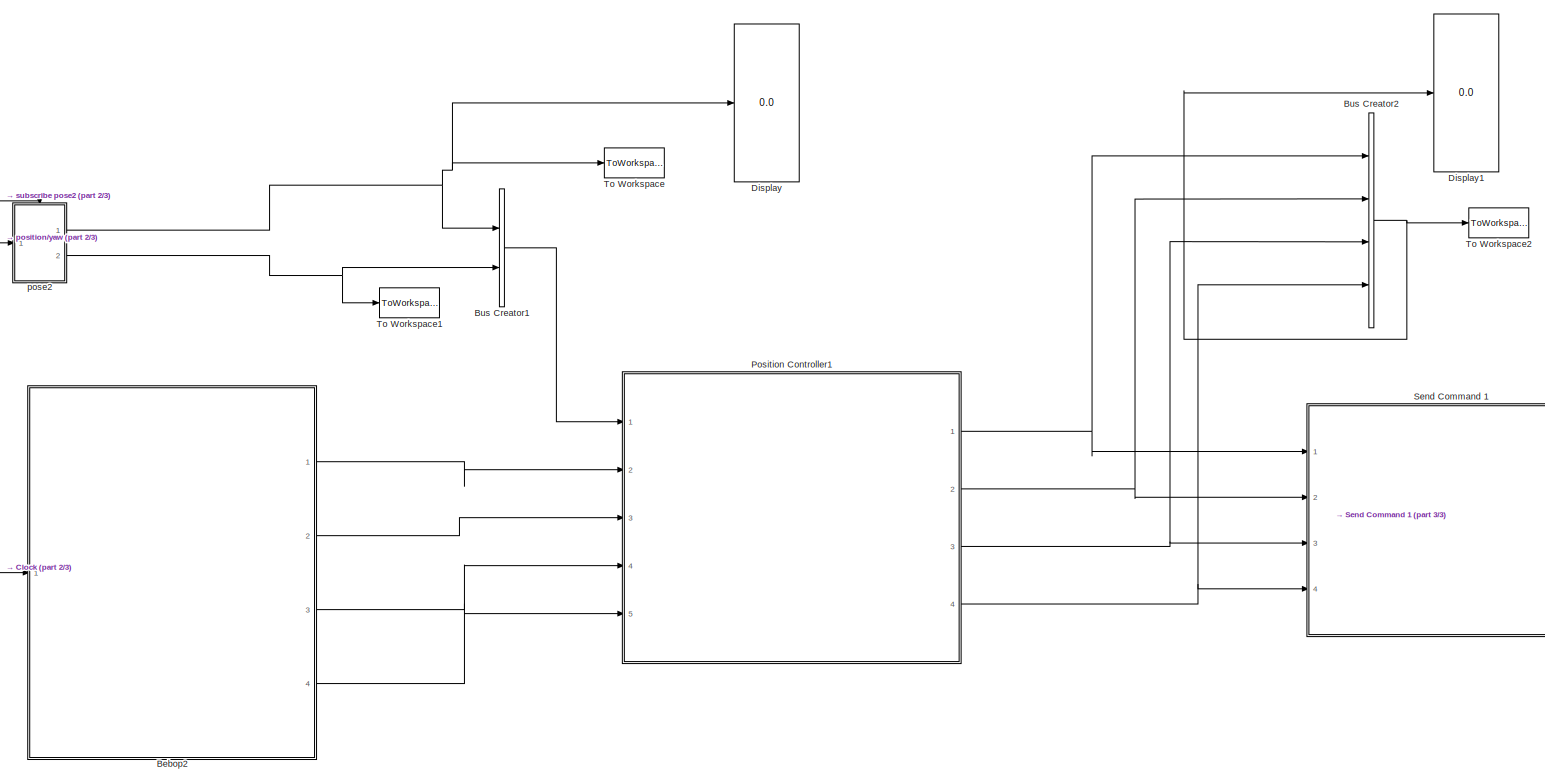
[diagram: root canvas - part 1/3, most of the canvas]
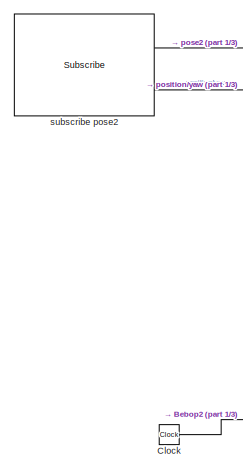
[diagram: root canvas - part 2/3, middle left region]
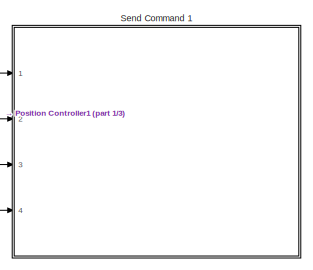
[diagram: root canvas - part 3/3, middle right region]
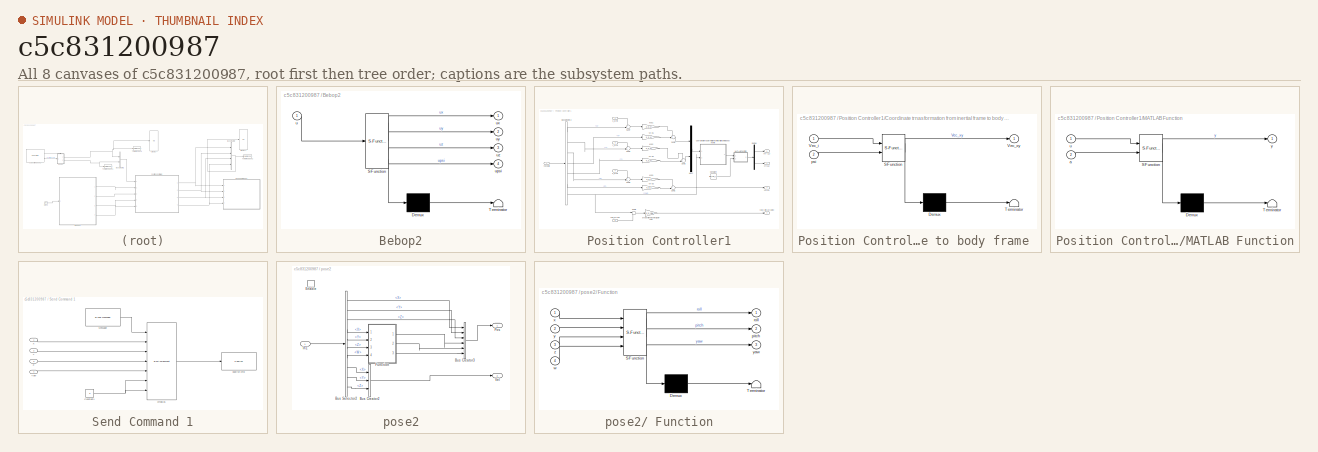
[diagram: thumbnail index - all 8 canvases of the model, root first then tree order]
MODEL slx_c5c831200987
KIND model
CONFIG AbsTol = auto
CONFIG EnableMultiTasking = on
CONFIG FixedStep = sampleTime
CONFIG MaxStep = auto
CONFIG MinStep = auto
CONFIG RelTol = 1e-3
CONFIG SampleTimeConstraint = Unconstrained
CONFIG Solver = FixedStepAuto
CONFIG SolverName = FixedStepAuto
CONFIG StartTime = 0.0
CONFIG StopTime = inf
BLOCK [SubSystem] Bebop2
  ErrorFcn = Stateflow.Translate.translate
  PermitHierarchicalResolution = ExplicitOnly
  Ports = [1, 4]
  RequestExecContextInheritance = off
  SFBlockType = MATLAB Function
  TreatAsAtomicUnit = on
  Variant = off
BLOCK [Demux] Bebop2/ Demux 
  Outputs = 1
  Ports = [1, 1]
BLOCK [S-Function] Bebop2/ SFunction 
  EnableBusSupport = on
  FunctionName = sf_sfun
  PortCounts = [1 5]
  Ports = [1, 5]
  SFcnIsStateOwnerBlock = off
  SFunctionDeploymentMode = off
  Tag = Stateflow S-Function SimCtrl 4
BLOCK [Terminator] Bebop2/ Terminator 
BLOCK [Inport] Bebop2/u
  IconDisplay = Port number
BLOCK [Outport] Bebop2/upsi
  IconDisplay = Port number
  Port = 4
BLOCK [Outport] Bebop2/ux
  IconDisplay = Port number
BLOCK [Outport] Bebop2/uy
  IconDisplay = Port number
  Port = 2
BLOCK [Outport] Bebop2/uz
  IconDisplay = Port number
  Port = 3
BLOCK [BusCreator] Bus Creator1
  DisplayOption = bar
  InheritFromInputs = on
  Inputs = 2
  Ports = [2, 1]
BLOCK [BusCreator] Bus Creator2
  DisplayOption = bar
  InheritFromInputs = on
  Inputs = 4
  Ports = [4, 1]
BLOCK [Clock] Clock
BLOCK [Display] Display
  Decimation = 1
  Ports = [1]
BLOCK [Display] Display1
  Decimation = 1
  Ports = [1]
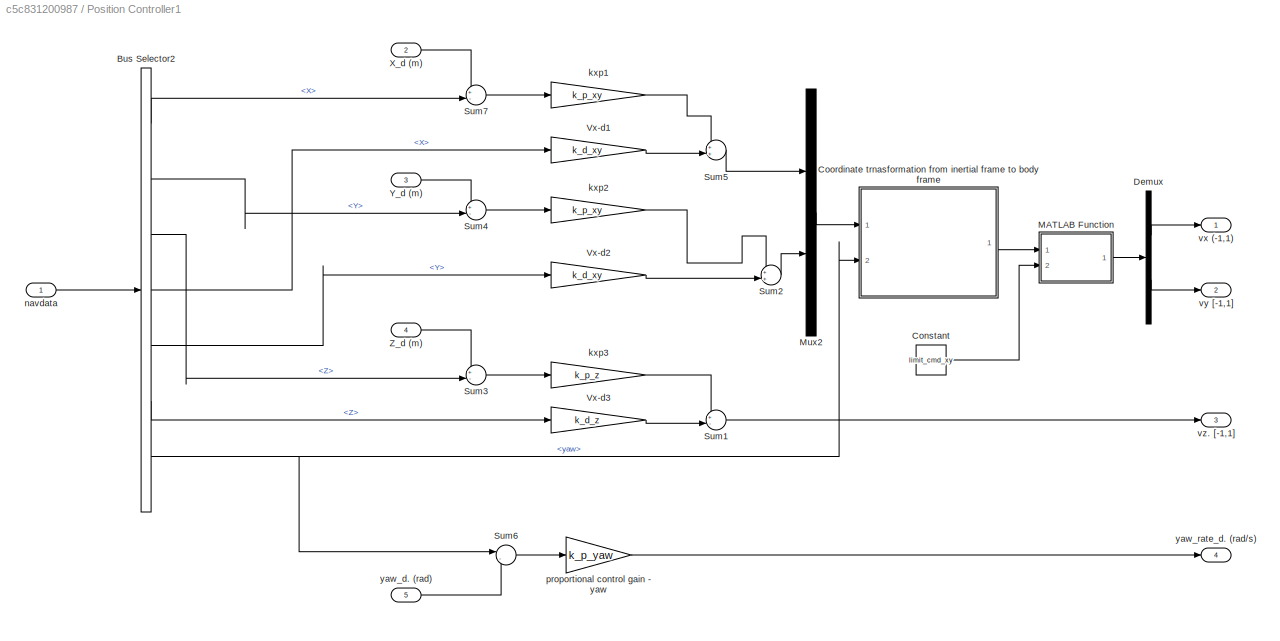
BLOCK [SubSystem] Position Controller1
  AncestorBlock = ARBlocks/Baseline Controller
  Ports = [5, 4]
  RequestExecContextInheritance = off
  Variant = off
BLOCK [BusSelector] Position Controller1/Bus Selector2
  OutputAsBus = off
  OutputSignals = signal1.X,signal1.Y,signal1.Z,signal2.X,signal2.Y,signal2.Z,signal1.yaw
  Ports = [1, 7]
BLOCK [Constant] Position Controller1/Constant
  Value = limit_cmd_xy
BLOCK [SubSystem] Position Controller1/Coordinate trnasformation from inertial frame to body frame 
  ErrorFcn = Stateflow.Translate.translate
  PermitHierarchicalResolution = ExplicitOnly
  Ports = [2, 1]
  RequestExecContextInheritance = off
  SFBlockType = MATLAB Function
  TreatAsAtomicUnit = on
  Variant = off
BLOCK [Demux] Position Controller1/Coordinate trnasformation from inertial frame to body frame / Demux 
  Outputs = 1
  Ports = [1, 1]
BLOCK [S-Function] Position Controller1/Coordinate trnasformation from inertial frame to body frame / SFunction 
  EnableBusSupport = on
  FunctionName = sf_sfun
  PortCounts = [2 2]
  Ports = [2, 2]
  SFcnIsStateOwnerBlock = off
  SFunctionDeploymentMode = off
  Tag = Stateflow S-Function SimCtrl 13
BLOCK [Terminator] Position Controller1/Coordinate trnasformation from inertial frame to body frame / Terminator 
BLOCK [Inport] Position Controller1/Coordinate trnasformation from inertial frame to body frame /Vec_i
  IconDisplay = Port number
BLOCK [Outport] Position Controller1/Coordinate trnasformation from inertial frame to body frame /Vec_xy
  IconDisplay = Port number
BLOCK [Inport] Position Controller1/Coordinate trnasformation from inertial frame to body frame /psi
  IconDisplay = Port number
  Port = 2
BLOCK [Demux] Position Controller1/Demux
  DisplayOption = bar
  Outputs = 2
  Ports = [1, 2]
BLOCK [SubSystem] Position Controller1/MATLAB Function
  ErrorFcn = Stateflow.Translate.translate
  PermitHierarchicalResolution = ExplicitOnly
  Ports = [2, 1]
  RequestExecContextInheritance = off
  SFBlockType = MATLAB Function
  TreatAsAtomicUnit = on
  Variant = off
BLOCK [Demux] Position Controller1/MATLAB Function/ Demux 
  Outputs = 1
  Ports = [1, 1]
BLOCK [S-Function] Position Controller1/MATLAB Function/ SFunction 
  EnableBusSupport = on
  FunctionName = sf_sfun
  PortCounts = [2 2]
  Ports = [2, 2]
  SFcnIsStateOwnerBlock = off
  SFunctionDeploymentMode = off
  Tag = Stateflow S-Function SimCtrl 5
BLOCK [Terminator] Position Controller1/MATLAB Function/ Terminator 
BLOCK [Inport] Position Controller1/MATLAB Function/a
  IconDisplay = Port number
  Port = 2
BLOCK [Inport] Position Controller1/MATLAB Function/u
  IconDisplay = Port number
BLOCK [Outport] Position Controller1/MATLAB Function/y
  IconDisplay = Port number
BLOCK [Mux] Position Controller1/Mux2
  DisplayOption = bar
  Inputs = 2
  Ports = [2, 1]
BLOCK [Sum] Position Controller1/Sum1
  IconShape = round
  InputSameDT = off
  Inputs = +-|
  OutDataTypeStr = Inherit: Inherit via internal rule
  Ports = [2, 1]
  SaturateOnIntegerOverflow = off
BLOCK [Sum] Position Controller1/Sum2
  IconShape = round
  InputSameDT = off
  Inputs = ++|
  OutDataTypeStr = Inherit: Inherit via internal rule
  Ports = [2, 1]
  SaturateOnIntegerOverflow = off
BLOCK [Sum] Position Controller1/Sum3
  IconShape = round
  InputSameDT = off
  Inputs = +-|
  OutDataTypeStr = Inherit: Inherit via internal rule
  Ports = [2, 1]
  SaturateOnIntegerOverflow = off
BLOCK [Sum] Position Controller1/Sum4
  IconShape = round
  InputSameDT = off
  Inputs = +-|
  OutDataTypeStr = Inherit: Inherit via internal rule
  Ports = [2, 1]
  SaturateOnIntegerOverflow = off
BLOCK [Sum] Position Controller1/Sum5
  IconShape = round
  InputSameDT = off
  Inputs = ++|
  OutDataTypeStr = Inherit: Inherit via internal rule
  Ports = [2, 1]
  SaturateOnIntegerOverflow = off
BLOCK [Sum] Position Controller1/Sum6
  IconShape = round
  InputSameDT = off
  Inputs = |-+
  OutDataTypeStr = Inherit: Inherit via internal rule
  Ports = [2, 1]
  SaturateOnIntegerOverflow = off
BLOCK [Sum] Position Controller1/Sum7
  IconShape = round
  InputSameDT = off
  Inputs = +-|
  OutDataTypeStr = Inherit: Inherit via internal rule
  Ports = [2, 1]
  SaturateOnIntegerOverflow = off
BLOCK [Gain] Position Controller1/Vx-d1
  Gain = k_d_xy
  OutDataTypeStr = Inherit: Inherit via internal rule
  ParamDataTypeStr = Inherit: Inherit via internal rule
  SaturateOnIntegerOverflow = off
BLOCK [Gain] Position Controller1/Vx-d2
  Gain = k_d_xy
  OutDataTypeStr = Inherit: Inherit via internal rule
  ParamDataTypeStr = Inherit: Inherit via internal rule
  SaturateOnIntegerOverflow = off
BLOCK [Gain] Position Controller1/Vx-d3
  Gain = k_d_z
  OutDataTypeStr = Inherit: Inherit via internal rule
  ParamDataTypeStr = Inherit: Inherit via internal rule
  SaturateOnIntegerOverflow = off
BLOCK [Inport] Position Controller1/X_d (m)
  IconDisplay = Port number
  Port = 2
BLOCK [Inport] Position Controller1/Y_d (m)
  IconDisplay = Port number
  Port = 3
BLOCK [Inport] Position Controller1/Z_d (m)
  IconDisplay = Port number
  Port = 4
BLOCK [Gain] Position Controller1/kxp1
  Gain = k_p_xy
  OutDataTypeStr = Inherit: Inherit via internal rule
  ParamDataTypeStr = Inherit: Inherit via internal rule
  SaturateOnIntegerOverflow = off
BLOCK [Gain] Position Controller1/kxp2
  Gain = k_p_xy
  OutDataTypeStr = Inherit: Inherit via internal rule
  ParamDataTypeStr = Inherit: Inherit via internal rule
  SaturateOnIntegerOverflow = off
BLOCK [Gain] Position Controller1/kxp3
  Gain = k_p_z
  OutDataTypeStr = Inherit: Inherit via internal rule
  ParamDataTypeStr = Inherit: Inherit via internal rule
  SaturateOnIntegerOverflow = off
BLOCK [Inport] Position Controller1/navdata
  IconDisplay = Port number
BLOCK [Gain] Position Controller1/proportional control gain - yaw
  Gain = k_p_yaw
  OutDataTypeStr = Inherit: Inherit via internal rule
  ParamDataTypeStr = Inherit: Inherit via internal rule
  SaturateOnIntegerOverflow = off
BLOCK [Outport] Position Controller1/vx (-1,1)
  IconDisplay = Port number
BLOCK [Outport] Position Controller1/vy [-1,1]
  IconDisplay = Port number
  Port = 2
BLOCK [Outport] Position Controller1/vz. [-1,1]
  IconDisplay = Port number
  Port = 3
BLOCK [Inport] Position Controller1/yaw_d. (rad)
  IconDisplay = Port number
  Port = 5
BLOCK [Outport] Position Controller1/yaw_rate_d. (rad//s)
  IconDisplay = Port number
  Port = 4
BLOCK [SubSystem] Send Command 1
  Ports = [4]
  RequestExecContextInheritance = off
  Variant = off
BLOCK [Reference] Send Command 1/ Message  REF=robotlib/Blank Message
  Ports = [0, 1]
  SourceBlock = robotlib/Blank Message
  SourceLibraryInfo = This block requires Robotics System Toolbox
  SourceProductBaseCode = RO
  SourceProductName = Robotics System Toolbox
  SourceType = ROS Blank Message
BLOCK [Constant] Send Command 1/Constant1
  Value = 0
BLOCK [Inport] Send Command 1/X
  IconDisplay = Port number
BLOCK [Inport] Send Command 1/Y
  IconDisplay = Port number
  Port = 2
BLOCK [Inport] Send Command 1/Yaw
  IconDisplay = Port number
  Port = 4
BLOCK [Inport] Send Command 1/Z
  IconDisplay = Port number
  Port = 3
BLOCK [BusAssignment] Send Command 1/cmdBus
  AssignedSignals = Linear.X,Linear.Y,Linear.Z,Angular.Z,Angular.X,Angular.Y
  Ports = [7, 1]
BLOCK [Reference] Send Command 1/publish cmd  REF=robotlib/Publish
  Ports = [1]
  SourceBlock = robotlib/Publish
  SourceLibraryInfo = This block requires Robotics System Toolbox
  SourceProductBaseCode = RO
  SourceProductName = Robotics System Toolbox
  SourceType = ROS Publish
BLOCK [ToWorkspace] To Workspace
  FixptAsFi = on
  MaxDataPoints = inf
  Ports = [1]
  SampleTime = -1
  Save2DSignal = 3-D array (concatenate along third dimension)
  SaveFormat = Timeseries
  VariableName = r1_pos
BLOCK [ToWorkspace] To Workspace1
  FixptAsFi = on
  MaxDataPoints = inf
  Ports = [1]
  SampleTime = -1
  Save2DSignal = 3-D array (concatenate along third dimension)
  SaveFormat = Timeseries
  VariableName = r1_vel
BLOCK [ToWorkspace] To Workspace2
  FixptAsFi = on
  MaxDataPoints = inf
  Ports = [1]
  SampleTime = -1
  Save2DSignal = 3-D array (concatenate along third dimension)
  SaveFormat = Timeseries
  VariableName = r1_cmd
BLOCK [SubSystem] pose2
  Ports = [1, 2, 1]
  RequestExecContextInheritance = off
  Variant = off
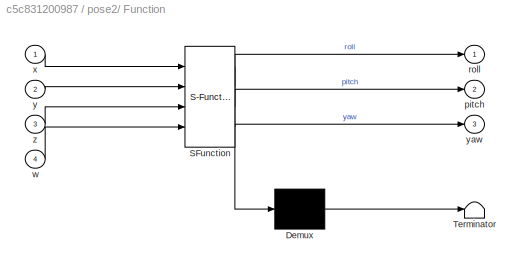
BLOCK [SubSystem] pose2/ Function
  ErrorFcn = Stateflow.Translate.translate
  PermitHierarchicalResolution = ExplicitOnly
  Ports = [4, 3]
  RequestExecContextInheritance = off
  SFBlockType = MATLAB Function
  TreatAsAtomicUnit = on
  Variant = off
BLOCK [Demux] pose2/ Function/ Demux 
  Outputs = 1
  Ports = [1, 1]
BLOCK [S-Function] pose2/ Function/ SFunction 
  EnableBusSupport = on
  FunctionName = sf_sfun
  PortCounts = [4 4]
  Ports = [4, 4]
  SFcnIsStateOwnerBlock = off
  SFunctionDeploymentMode = off
  Tag = Stateflow S-Function SimCtrl 11
BLOCK [Terminator] pose2/ Function/ Terminator 
BLOCK [Outport] pose2/ Function/pitch
  IconDisplay = Port number
  Port = 2
BLOCK [Outport] pose2/ Function/roll
  IconDisplay = Port number
BLOCK [Inport] pose2/ Function/w
  IconDisplay = Port number
  Port = 4
BLOCK [Inport] pose2/ Function/x
  IconDisplay = Port number
BLOCK [Inport] pose2/ Function/y
  IconDisplay = Port number
  Port = 2
BLOCK [Outport] pose2/ Function/yaw
  IconDisplay = Port number
  Port = 3
BLOCK [Inport] pose2/ Function/z
  IconDisplay = Port number
  Port = 3
BLOCK [BusCreator] pose2/Bus Creator2
  DisplayOption = bar
  InheritFromInputs = on
  Inputs = 3
  Ports = [3, 1]
BLOCK [BusCreator] pose2/Bus Creator3
  DisplayOption = bar
  InheritFromInputs = on
  Inputs = 6
  Ports = [6, 1]
BLOCK [BusSelector] pose2/Bus Selector2
  OutputAsBus = off
  OutputSignals = Pose.Pose.Position.X,Pose.Pose.Position.Y,Pose.Pose.Position.Z,Pose.Pose.Orientation.X,Pose.Pose.Orientation.Y,Pose.Pose.Orientation.Z,Pose.Pose.Orientation.W,Twist.Twist.Linear.X,Twist.Twist.Linear.Y,Twist.Twist.Linear.Z
  Ports = [1, 10]
BLOCK [EnablePort] pose2/Enable
  Ports = []
BLOCK [Inport] pose2/In1
  IconDisplay = Port number
BLOCK [Outport] pose2/Pos
  IconDisplay = Port number
BLOCK [Outport] pose2/Vel
  IconDisplay = Port number
  Port = 2
BLOCK [Reference] subscribe pose2  REF=robotlib/Subscribe
  Ports = [0, 2]
  SourceBlock = robotlib/Subscribe
  SourceLibraryInfo = This block requires Robotics System Toolbox
  SourceProductBaseCode = RO
  SourceProductName = Robotics System Toolbox
  SourceType = ROS Subscribe
LINE Bebop2:1 -> Position Controller1:2
LINE Bebop2:2 -> Position Controller1:3
LINE Bebop2:3 -> Position Controller1:4
LINE Bebop2:4 -> Position Controller1:5
LINE Bus Creator1:1 -> Position Controller1:1
NET Bus Creator2:1 -> Display1:1, To Workspace2:1
LINE Clock:1 -> Bebop2:1
NET Position Controller1:1 -> Bus Creator2:1, Send Command 1:1
NET Position Controller1:2 -> Bus Creator2:2, Send Command 1:2
NET Position Controller1:3 -> Bus Creator2:3, Send Command 1:3
NET Position Controller1:4 -> Bus Creator2:4, Send Command 1:4
LINE Send Command 1/ Message:1 -> Send Command 1/cmdBus:1
NET Send Command 1/Constant1:1 -> Send Command 1/cmdBus:6, Send Command 1/cmdBus:7
LINE Send Command 1/X:1 -> Send Command 1/cmdBus:2
LINE Send Command 1/Y:1 -> Send Command 1/cmdBus:3
LINE Send Command 1/Yaw:1 -> Send Command 1/cmdBus:5
LINE Send Command 1/Z:1 -> Send Command 1/cmdBus:4
LINE Send Command 1/cmdBus:1 -> Send Command 1/publish cmd:1
LINE pose2/ Function:1 -> pose2/Bus Creator3:4
LINE pose2/ Function:2 -> pose2/Bus Creator3:5
LINE pose2/ Function:3 -> pose2/Bus Creator3:6
LINE pose2/Bus Creator2:1 -> pose2/Vel:1
LINE pose2/Bus Creator3:1 -> pose2/Pos:1
LINE pose2/Bus Selector2:1 -> pose2/Bus Creator3:1
LINE pose2/Bus Selector2:10 -> pose2/Bus Creator2:3
LINE pose2/Bus Selector2:2 -> pose2/Bus Creator3:2
LINE pose2/Bus Selector2:3 -> pose2/Bus Creator3:3
LINE pose2/Bus Selector2:4 -> pose2/ Function:1
LINE pose2/Bus Selector2:5 -> pose2/ Function:2
LINE pose2/Bus Selector2:6 -> pose2/ Function:3
LINE pose2/Bus Selector2:7 -> pose2/ Function:4
LINE pose2/Bus Selector2:8 -> pose2/Bus Creator2:1
LINE pose2/Bus Selector2:9 -> pose2/Bus Creator2:2
LINE pose2/In1:1 -> pose2/Bus Selector2:1
NET pose2:1 -> Bus Creator1:1, Display:1, To Workspace:1
NET pose2:2 -> Bus Creator1:2, To Workspace1:1
LINE subscribe pose2:1 -> pose2:enable
LINE subscribe pose2:2 -> pose2:1
note: NET lines group one-source signal fan-out (src -> all destinations, sorted); 1:1 wires keep LINE
CHART Bebop2 states=1 transitions=1
  STATE_LABEL 'eML_blk_kernel()'
  STATE_LABEL 'SCRIPT:\nfunction [ux,uy,uz,upsi] = fcn(u)\n\nt=u;\nr=3;\nw = 0.5;\nux=r*cos(w*t);\nuy=r*sin(w*t);\nuz=3;\nupsi=0;\n '
CHART Position Controller1/MATLAB Function states=1 transitions=1
  STATE_LABEL 'eML_blk_kernel()'
  STATE_LABEL 'SCRIPT:\nfunction y = fcn(u,a)\n    temp = norm(u,Inf);\n    if  temp<=a\n        y = u;\n    else\n        y= a*u/temp;\n    end\nend'
CHART pose2/ Function states=1 transitions=1
  STATE_LABEL 'eML_blk_kernel()'
  STATE_LABEL 'SCRIPT:\nfunction [roll, pitch, yaw] = quat2rpy(x, y, z, w)\n    t0 = -2.0 * (y * y + z * z) + 1.0;\n    t1 = +2.0 * (x * y + w * z);\n    t2 = -2.0 * (x * z - w * y);\n    t3 = +2.0 * (y * z + w * x);\n    t4 = -2.0 * (x * x + y * y) + 1.0;\n\n    roll = -asin(t2);\n    pitch = -atan2(t3, t4);\n    yaw= -atan2(t1, t0);'
CHART Position Controller1/Coordinate trnasformation 
from inertial frame to body frame  states=1 transitions=1
  STATE_LABEL 'eML_blk_kernel()'
  STATE_LABEL 'SCRIPT:\nfunction Vec_xy  = fcn(Vec_i , psi)\n%#codegen\nT = [cos(psi) sin(psi) ; -sin(psi) cos(psi)] ; \nVec_xy = T*Vec_i(1:2,1); \n\n'
